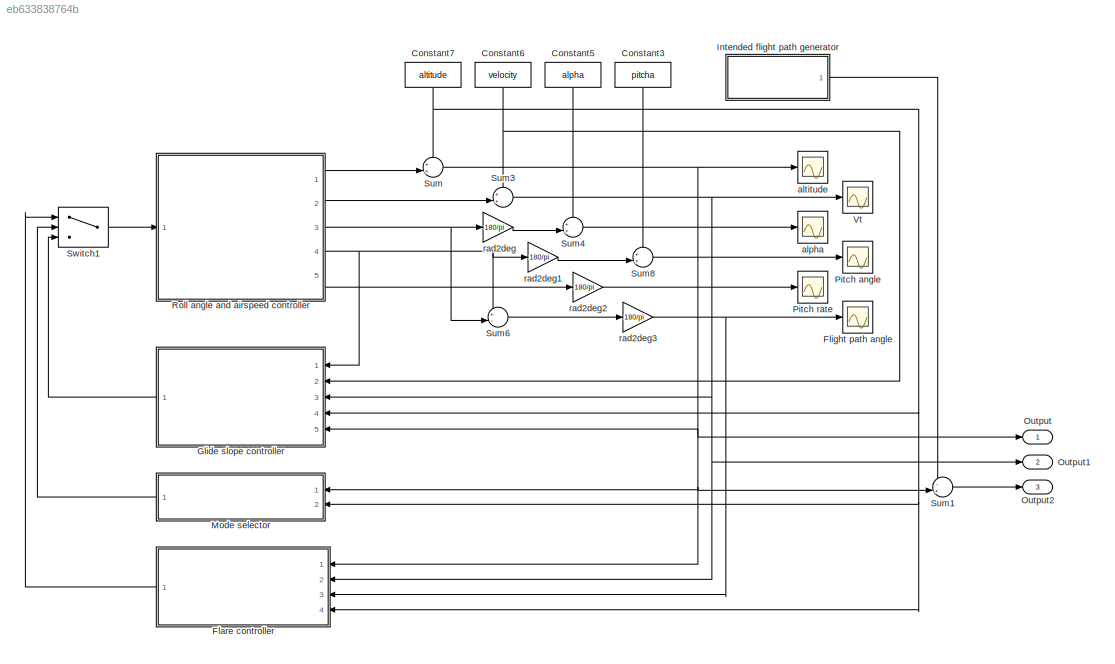
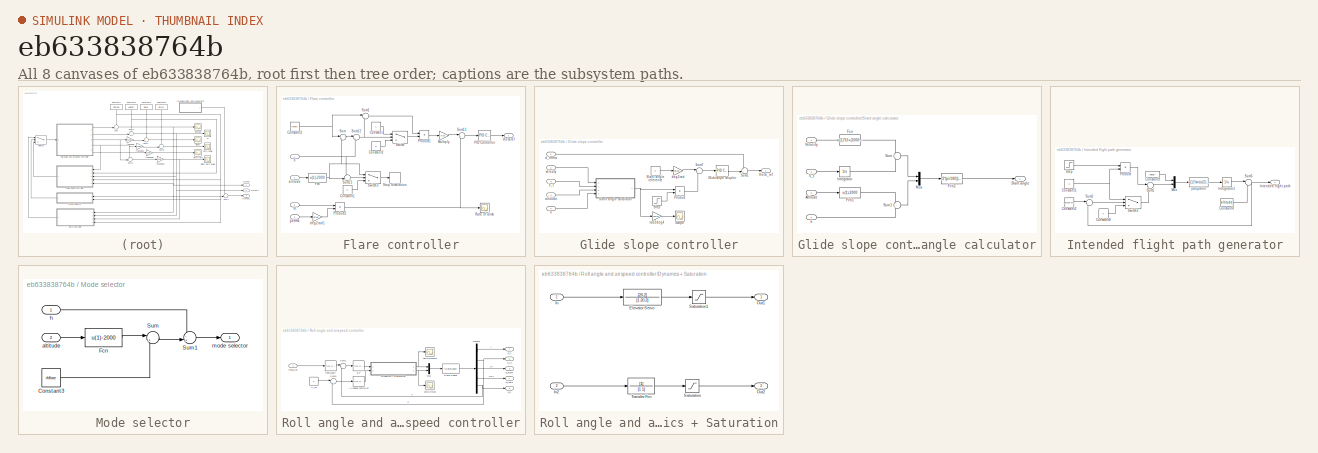
[diagram: thumbnail index - all 8 canvases of the model, root first then tree order]
MODEL slx_eb633838764b
KIND model
CONFIG AbsTol = auto
CONFIG EnableMultiTasking = off
CONFIG FixedStep = auto
CONFIG MaxStep = auto
CONFIG MinStep = auto
CONFIG RelTol = 1e-3
CONFIG SampleTimeConstraint = Unconstrained
CONFIG Solver = VariableStepAuto
CONFIG SolverName = VariableStepAuto
CONFIG StartTime = 0.0
CONFIG StopTime = 160
BLOCK [Constant] Constant3
  Value = pitcha
BLOCK [Constant] Constant5
  Value = alpha
BLOCK [Constant] Constant6
  Value = velocity
BLOCK [Constant] Constant7
  Value = altitude
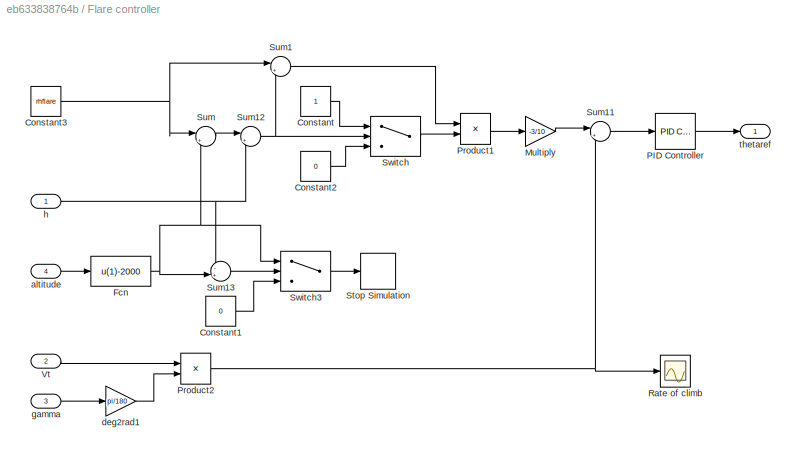
BLOCK [SubSystem] Flare controller
  Ports = [4, 1]
  RequestExecContextInheritance = off
BLOCK [Constant] Flare controller/Constant
BLOCK [Constant] Flare controller/Constant1
  Value = 0
BLOCK [Constant] Flare controller/Constant2
  Value = 0
BLOCK [Constant] Flare controller/Constant3
  Value = rhflare
BLOCK [Fcn] Flare controller/Fcn
  Expr = u(1)-2000
BLOCK [Gain] Flare controller/Multiply
  Gain = -3/10
  OutDataTypeStr = Inherit: Inherit via internal rule
  ParamDataTypeStr = Inherit: Inherit via internal rule
  SaturateOnIntegerOverflow = off
BLOCK [Reference] Flare controller/PID Controller  REF=simulink/Continuous/PID Controller
  Ports = [1, 1]
  SourceBlock = simulink/Continuous/PID Controller
  SourceProductBaseCode = SL
  SourceProductName = Simulink
  SourceType = PID 1dof
BLOCK [Product] Flare controller/Product1
  InputSameDT = off
  OutDataTypeStr = Inherit: Inherit via internal rule
  Ports = [2, 1]
  RndMeth = Floor
  SaturateOnIntegerOverflow = off
BLOCK [Product] Flare controller/Product2
  InputSameDT = off
  OutDataTypeStr = Inherit: Inherit via internal rule
  Ports = [2, 1]
  RndMeth = Floor
  SaturateOnIntegerOverflow = off
BLOCK [Scope] Flare controller/Rate of climb
  Floating = off
  NumInputPorts = 1
  Ports = [1]
  ScopeSpecificationString = Simulink.scopes.TimeScopeBlockCfg('CurrentConfiguration', extmgr.ConfigurationSet(extmgr.Configuration('Core','General UI',true),extmgr.Configuration('Core','Source UI',true),extmgr.Configuration('Sources','WiredSimulink',true,'DataLoggingVariableName','ScopeData1'),extmgr.Configuration('Visuals','Time Domain',true,'SerializedDisplays',{struct('MinYLimReal','-24.84513','MaxYLimReal','2.96034','YLa...<+1522ch>
BLOCK [Stop] Flare controller/Stop Simulation
BLOCK [Sum] Flare controller/Sum
  IconShape = round
  InputSameDT = off
  Inputs = |++
  OutDataTypeStr = Inherit: Inherit via internal rule
  Ports = [2, 1]
  SaturateOnIntegerOverflow = off
BLOCK [Sum] Flare controller/Sum1
  IconShape = round
  InputSameDT = off
  Inputs = |+-
  OutDataTypeStr = Inherit: Inherit via internal rule
  Ports = [2, 1]
  SaturateOnIntegerOverflow = off
BLOCK [Sum] Flare controller/Sum11
  IconShape = round
  InputSameDT = off
  Inputs = |+-
  OutDataTypeStr = Inherit: Inherit via internal rule
  Ports = [2, 1]
  SaturateOnIntegerOverflow = off
BLOCK [Sum] Flare controller/Sum12
  IconShape = round
  InputSameDT = off
  Inputs = |+-
  OutDataTypeStr = Inherit: Inherit via internal rule
  Ports = [2, 1]
  SaturateOnIntegerOverflow = off
BLOCK [Sum] Flare controller/Sum13
  IconShape = round
  InputSameDT = off
  Inputs = -+|
  OutDataTypeStr = Inherit: Inherit via internal rule
  Ports = [2, 1]
  SaturateOnIntegerOverflow = off
BLOCK [Switch] Flare controller/Switch
  Criteria = u2 > Threshold
  InputSameDT = off
  SaturateOnIntegerOverflow = off
BLOCK [Switch] Flare controller/Switch3
  InputSameDT = off
  SaturateOnIntegerOverflow = off
BLOCK [Inport] Flare controller/Vt
  IconDisplay = Port number
  Port = 2
BLOCK [Inport] Flare controller/altitude
  IconDisplay = Port number
  Port = 4
BLOCK [Gain] Flare controller/deg2rad1
  Gain = pi/180
  OutDataTypeStr = Inherit: Inherit via internal rule
  ParamDataTypeStr = Inherit: Inherit via internal rule
  SaturateOnIntegerOverflow = off
BLOCK [Inport] Flare controller/gamma
  IconDisplay = Port number
  Port = 3
BLOCK [Inport] Flare controller/h
  IconDisplay = Port number
BLOCK [Outport] Flare controller/thetaref
  IconDisplay = Port number
BLOCK [Scope] Flight path angle
  Floating = off
  NumInputPorts = 1
  Ports = [1]
  ScopeSpecificationString = Simulink.scopes.TimeScopeBlockCfg('CurrentConfiguration', extmgr.ConfigurationSet(extmgr.Configuration('Core','General UI',true),extmgr.Configuration('Core','Source UI',true),extmgr.Configuration('Sources','WiredSimulink',true,'DataLoggingVariableName','ScopeData1'),extmgr.Configuration('Visuals','Time Domain',true,'SerializedDisplays',{struct('MinYLimReal','-4.72802','MaxYLimReal','0.56349','YLab...<+1512ch>
BLOCK [SubSystem] Glide slope controller
  Ports = [5, 1]
  RequestExecContextInheritance = off
BLOCK [Reference] Glide slope controller/Glideslope coupler  REF=simulink/Continuous/PID Controller
  Ports = [1, 1]
  SourceBlock = simulink/Continuous/PID Controller
  SourceProductBaseCode = SL
  SourceProductName = Simulink
  SourceType = PID 1dof
BLOCK [Product] Glide slope controller/Product
  InputSameDT = off
  OutDataTypeStr = Inherit: Inherit via internal rule
  Ports = [2, 1]
  RndMeth = Floor
  SaturateOnIntegerOverflow = off
BLOCK [Scope] Glide slope controller/Scope
  Floating = off
  NumInputPorts = 1
  Ports = [1]
  ScopeSpecificationString = Simulink.scopes.TimeScopeBlockCfg('CurrentConfiguration', extmgr.ConfigurationSet(extmgr.Configuration('Core','General UI',true),extmgr.Configuration('Core','Source UI',true),extmgr.Configuration('Sources','WiredSimulink',true,'DataLoggingVariableName','ScopeData4'),extmgr.Configuration('Visuals','Time Domain',true,'SerializedDisplays',{struct('MinYLimReal','-4.91603','MaxYLimReal','4.02846','YLab...<+1441ch>
BLOCK [SubSystem] Glide slope controller/Slant angle calculator
  Ports = [4, 1]
  RequestExecContextInheritance = off
BLOCK [Inport] Glide slope controller/Slant angle calculator/Altitude
  IconDisplay = Port number
  Port = 3
BLOCK [Fcn] Glide slope controller/Slant angle calculator/Fcn
  Expr = u(1)*10+(2000/tan(3*(pi/180)))
BLOCK [Fcn] Glide slope controller/Slant angle calculator/Fcn1
  Expr = u(1)-2000
BLOCK [Fcn] Glide slope controller/Slant angle calculator/Fcn2
  Expr = (3*(pi/180))-(atan(u(2)/u(1)))
BLOCK [Integrator] Glide slope controller/Slant angle calculator/Integrator
  Ports = [1, 1]
BLOCK [Mux] Glide slope controller/Slant angle calculator/Mux
  DisplayOption = bar
  Inputs = 2
  Ports = [2, 1]
BLOCK [Outport] Glide slope controller/Slant angle calculator/Slant angle
  IconDisplay = Port number
BLOCK [Sum] Glide slope controller/Slant angle calculator/Sum
  IconShape = round
  InputSameDT = off
  Inputs = +|-
  OutDataTypeStr = Inherit: Inherit via internal rule
  Ports = [2, 1]
  SaturateOnIntegerOverflow = off
BLOCK [Sum] Glide slope controller/Slant angle calculator/Sum1
  IconShape = round
  InputSameDT = off
  Inputs = -|+
  OutDataTypeStr = Inherit: Inherit via internal rule
  Ports = [2, 1]
  SaturateOnIntegerOverflow = off
BLOCK [Inport] Glide slope controller/Slant angle calculator/V_t
  IconDisplay = Port number
  Port = 2
BLOCK [Inport] Glide slope controller/Slant angle calculator/Velocity
  IconDisplay = Port number
BLOCK [Inport] Glide slope controller/Slant angle calculator/h
  IconDisplay = Port number
  Port = 4
BLOCK [Constant] Glide slope controller/Slant angle reference
  Value = 0
BLOCK [Step] Glide slope controller/Step
  SampleTime = 0
  Time = 9.6
BLOCK [Sum] Glide slope controller/Sum1
  IconShape = round
  InputSameDT = off
  Inputs = -+|
  OutDataTypeStr = Inherit: Inherit via internal rule
  Ports = [2, 1]
  SaturateOnIntegerOverflow = off
BLOCK [Sum] Glide slope controller/Sum7
  IconShape = round
  InputSameDT = off
  Inputs = |+-
  OutDataTypeStr = Inherit: Inherit via internal rule
  Ports = [2, 1]
  SaturateOnIntegerOverflow = off
BLOCK [Inport] Glide slope controller/V_t
  IconDisplay = Port number
  Port = 3
BLOCK [Inport] Glide slope controller/altitude
  IconDisplay = Port number
  Port = 4
BLOCK [Inport] Glide slope controller/d_theta
  IconDisplay = Port number
BLOCK [Gain] Glide slope controller/deg2rad
  Gain = pi/180
  OutDataTypeStr = Inherit: Inherit via internal rule
  ParamDataTypeStr = Inherit: Inherit via internal rule
  SaturateOnIntegerOverflow = off
BLOCK [Inport] Glide slope controller/h
  IconDisplay = Port number
  Port = 5
BLOCK [Gain] Glide slope controller/rad2deg4
  Gain = 180/pi
  OutDataTypeStr = Inherit: Inherit via internal rule
  ParamDataTypeStr = Inherit: Inherit via internal rule
  SaturateOnIntegerOverflow = off
BLOCK [Outport] Glide slope controller/theta_ref
  IconDisplay = Port number
BLOCK [Inport] Glide slope controller/velocity
  IconDisplay = Port number
  Port = 2
BLOCK [SubSystem] Intended flight path generator
  Ports = [0, 1]
  RequestExecContextInheritance = off
BLOCK [Constant] Intended flight path generator/Constant1
  Value = 3
BLOCK [Constant] Intended flight path generator/Constant2
  Value = altitude-2000
BLOCK [Constant] Intended flight path generator/Constant4
  Value = altitude
BLOCK [Constant] Intended flight path generator/Constant8
  Value = 0
BLOCK [Constant] Intended flight path generator/Constant9
  Value = velocity
BLOCK [Integrator] Intended flight path generator/Integrator1
  Ports = [1, 1]
BLOCK [Outport] Intended flight path generator/Intended flight path
  IconDisplay = Port number
BLOCK [Mux] Intended flight path generator/Mux
  DisplayOption = bar
  Inputs = 2
  Ports = [2, 1]
BLOCK [Product] Intended flight path generator/Product
  InputSameDT = off
  OutDataTypeStr = Inherit: Inherit via internal rule
  Ports = [2, 1]
  RndMeth = Floor
  SaturateOnIntegerOverflow = off
BLOCK [Step] Intended flight path generator/Step
  SampleTime = 0
  Time = 10
BLOCK [Sum] Intended flight path generator/Sum1
  IconShape = round
  InputSameDT = off
  Inputs = |+-
  OutDataTypeStr = Inherit: Inherit via internal rule
  Ports = [2, 1]
  SaturateOnIntegerOverflow = off
BLOCK [Sum] Intended flight path generator/Sum2
  IconShape = round
  InputSameDT = off
  Inputs = |+-
  OutDataTypeStr = Inherit: Inherit via internal rule
  Ports = [2, 1]
  SaturateOnIntegerOverflow = off
BLOCK [Sum] Intended flight path generator/Sum5
  IconShape = round
  InputSameDT = off
  Inputs = |-+
  OutDataTypeStr = Inherit: Inherit via internal rule
  Ports = [2, 1]
  SaturateOnIntegerOverflow = off
BLOCK [Switch] Intended flight path generator/Switch2
  InputSameDT = off
  SaturateOnIntegerOverflow = off
BLOCK [Fcn] Intended flight path generator/y bepalen
  Expr = u(1)*sin(u(2)*pi/180)
BLOCK [SubSystem] Mode selector
  Ports = [2, 1]
  RequestExecContextInheritance = off
BLOCK [Constant] Mode selector/Constant3
  Value = rhflare
BLOCK [Fcn] Mode selector/Fcn
  Expr = u(1)-2000
BLOCK [Sum] Mode selector/Sum
  IconShape = round
  InputSameDT = off
  Inputs = |++
  OutDataTypeStr = Inherit: Inherit via internal rule
  Ports = [2, 1]
  SaturateOnIntegerOverflow = off
BLOCK [Sum] Mode selector/Sum1
  IconShape = round
  InputSameDT = off
  Inputs = -+|
  OutDataTypeStr = Inherit: Inherit via internal rule
  Ports = [2, 1]
  SaturateOnIntegerOverflow = off
BLOCK [Inport] Mode selector/altitude
  IconDisplay = Port number
  Port = 2
BLOCK [Inport] Mode selector/h
  IconDisplay = Port number
BLOCK [Outport] Mode selector/mode selector
  IconDisplay = Port number
BLOCK [Outport] Output
  IconDisplay = Port number
BLOCK [Outport] Output1
  IconDisplay = Port number
  Port = 2
BLOCK [Outport] Output2
  IconDisplay = Port number
  Port = 3
BLOCK [Scope] Pitch angle
  Floating = off
  NumInputPorts = 1
  Ports = [1]
  ScopeSpecificationString = Simulink.scopes.TimeScopeBlockCfg('CurrentConfiguration', extmgr.ConfigurationSet(extmgr.Configuration('Core','General UI',true),extmgr.Configuration('Core','Source UI',true),extmgr.Configuration('Sources','WiredSimulink',true,'DataLoggingVariableName','ScopeData3'),extmgr.Configuration('Visuals','Time Domain',true,'SerializedDisplays',{struct('MinYLimReal','5.22121','MaxYLimReal','11.77507','YLab...<+1527ch>
BLOCK [Scope] Pitch rate
  Floating = off
  NumInputPorts = 1
  Ports = [1]
  ScopeSpecificationString = Simulink.scopes.TimeScopeBlockCfg('CurrentConfiguration', extmgr.ConfigurationSet(extmgr.Configuration('Core','General UI',true),extmgr.Configuration('Core','Source UI',true),extmgr.Configuration('Sources','WiredSimulink',true,'DataLoggingVariableName','ScopeData2'),extmgr.Configuration('Visuals','Time Domain',true,'SerializedDisplays',{struct('MinYLimReal','-1.71583','MaxYLimReal','1.6471','YLabe...<+1500ch>
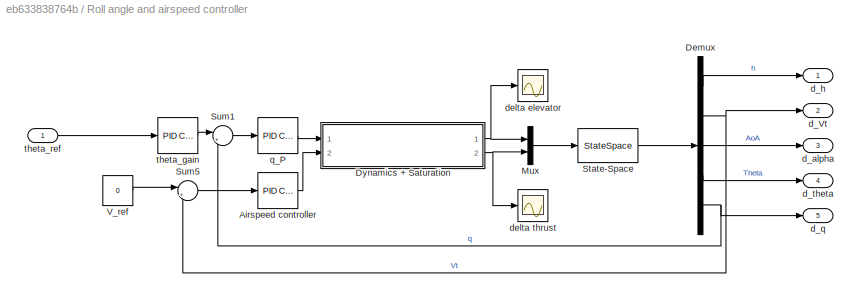
BLOCK [SubSystem] Roll angle and airspeed controller
  Ports = [1, 5]
  RequestExecContextInheritance = off
BLOCK [Constant] Roll angle and airspeed controller/ V_ref
  Value = 0
BLOCK [Reference] Roll angle and airspeed controller/Airspeed controller  REF=simulink/Continuous/PID Controller
  Ports = [1, 1]
  SourceBlock = simulink/Continuous/PID Controller
  SourceProductBaseCode = SL
  SourceProductName = Simulink
  SourceType = PID 1dof
BLOCK [Demux] Roll angle and airspeed controller/Demux
  DisplayOption = bar
  Outputs = 5
  Ports = [1, 5]
BLOCK [SubSystem] Roll angle and airspeed controller/Dynamics + Saturation
  Ports = [2, 2]
  RequestExecContextInheritance = off
BLOCK [TransferFcn] Roll angle and airspeed controller/Dynamics + Saturation/Elevator Servo
  Denominator = [1 20.2]
  Numerator = [20.2]
BLOCK [Inport] Roll angle and airspeed controller/Dynamics + Saturation/In 
  IconDisplay = Port number
BLOCK [Inport] Roll angle and airspeed controller/Dynamics + Saturation/In2
  IconDisplay = Port number
  Port = 2
BLOCK [Outport] Roll angle and airspeed controller/Dynamics + Saturation/Out1
  IconDisplay = Port number
BLOCK [Outport] Roll angle and airspeed controller/Dynamics + Saturation/Out2
  IconDisplay = Port number
  Port = 2
BLOCK [Saturate] Roll angle and airspeed controller/Dynamics + Saturation/Saturation
  InputPortMap = u0
  LowerLimit = -1.5106e+03
  Ports = [1, 1]
  UpperLimit = 1.6489e+04
BLOCK [Saturate] Roll angle and airspeed controller/Dynamics + Saturation/Saturation1
  InputPortMap = u0
  LowerLimit = -28.7783
  Ports = [1, 1]
  UpperLimit = 21.2217
BLOCK [TransferFcn] Roll angle and airspeed controller/Dynamics + Saturation/Transfer Fcn
  Denominator = [1 1]
BLOCK [Mux] Roll angle and airspeed controller/Mux
  DisplayOption = bar
  Inputs = 2
  Ports = [2, 1]
BLOCK [StateSpace] Roll angle and airspeed controller/State-Space
  A = As
  B = Bs
  C = Cs
  D = Ds
  InitialCondition = 0
  Ports = [1, 1]
BLOCK [Sum] Roll angle and airspeed controller/Sum1
  IconShape = round
  InputSameDT = off
  Inputs = |+-
  OutDataTypeStr = Inherit: Inherit via internal rule
  Ports = [2, 1]
  SaturateOnIntegerOverflow = off
BLOCK [Sum] Roll angle and airspeed controller/Sum5
  IconShape = round
  InputSameDT = off
  Inputs = |+-
  OutDataTypeStr = Inherit: Inherit via internal rule
  Ports = [2, 1]
  SaturateOnIntegerOverflow = off
BLOCK [Outport] Roll angle and airspeed controller/d_Vt
  IconDisplay = Port number
  Port = 2
BLOCK [Outport] Roll angle and airspeed controller/d_alpha
  IconDisplay = Port number
  Port = 3
BLOCK [Outport] Roll angle and airspeed controller/d_h
  IconDisplay = Port number
BLOCK [Outport] Roll angle and airspeed controller/d_q
  IconDisplay = Port number
  Port = 5
BLOCK [Outport] Roll angle and airspeed controller/d_theta
  IconDisplay = Port number
  Port = 4
BLOCK [Scope] Roll angle and airspeed controller/delta elevator
  Floating = off
  NumInputPorts = 1
  Ports = [1]
  ScopeSpecificationString = Simulink.scopes.TimeScopeBlockCfg('CurrentConfiguration', extmgr.ConfigurationSet(extmgr.Configuration('Core','General UI',true),extmgr.Configuration('Core','Source UI',true),extmgr.Configuration('Sources','WiredSimulink',true,'DataLoggingVariableName','ScopeData2'),extmgr.Configuration('Visuals','Time Domain',true,'SerializedDisplays',{struct('MinYLimReal','-33.72757','MaxYLimReal','15.7651','YLa...<+1535ch>
BLOCK [Scope] Roll angle and airspeed controller/delta thrust
  Floating = off
  NumInputPorts = 1
  Ports = [1]
  ScopeSpecificationString = Simulink.scopes.TimeScopeBlockCfg('CurrentConfiguration', extmgr.ConfigurationSet(extmgr.Configuration('Core','General UI',true),extmgr.Configuration('Core','Source UI',true),extmgr.Configuration('Sources','WiredSimulink',true,'DataLoggingVariableName','ScopeData3'),extmgr.Configuration('Visuals','Time Domain',true,'SerializedDisplays',{struct('MinYLimReal','-1732.78097','MaxYLimReal','489.02875',...<+1488ch>
BLOCK [Reference] Roll angle and airspeed controller/q_P  REF=simulink/Continuous/PID Controller
  Ports = [1, 1]
  SourceBlock = simulink/Continuous/PID Controller
  SourceProductBaseCode = SL
  SourceProductName = Simulink
  SourceType = PID 1dof
BLOCK [Reference] Roll angle and airspeed controller/theta_gain  REF=simulink/Continuous/PID Controller
  Ports = [1, 1]
  SourceBlock = simulink/Continuous/PID Controller
  SourceProductBaseCode = SL
  SourceProductName = Simulink
  SourceType = PID 1dof
BLOCK [Inport] Roll angle and airspeed controller/theta_ref
  IconDisplay = Port number
BLOCK [Sum] Sum
  IconShape = round
  InputSameDT = off
  Inputs = ++|
  OutDataTypeStr = Inherit: Inherit via internal rule
  Ports = [2, 1]
  SaturateOnIntegerOverflow = off
BLOCK [Sum] Sum1
  IconShape = round
  InputSameDT = off
  Inputs = -+|
  OutDataTypeStr = Inherit: Inherit via internal rule
  Ports = [2, 1]
  SaturateOnIntegerOverflow = off
BLOCK [Sum] Sum3
  IconShape = round
  InputSameDT = off
  Inputs = ++|
  OutDataTypeStr = Inherit: Inherit via internal rule
  Ports = [2, 1]
  SaturateOnIntegerOverflow = off
BLOCK [Sum] Sum4
  IconShape = round
  InputSameDT = off
  Inputs = ++|
  OutDataTypeStr = Inherit: Inherit via internal rule
  Ports = [2, 1]
  SaturateOnIntegerOverflow = off
BLOCK [Sum] Sum6
  IconShape = round
  InputSameDT = off
  Inputs = +-|
  OutDataTypeStr = Inherit: Inherit via internal rule
  Ports = [2, 1]
  SaturateOnIntegerOverflow = off
BLOCK [Sum] Sum8
  IconShape = round
  InputSameDT = off
  Inputs = ++|
  OutDataTypeStr = Inherit: Inherit via internal rule
  Ports = [2, 1]
  SaturateOnIntegerOverflow = off
BLOCK [Switch] Switch1
  Criteria = u2 > Threshold
  InputSameDT = off
  SaturateOnIntegerOverflow = off
BLOCK [Scope] Vt
  Floating = off
  NumInputPorts = 1
  Ports = [1]
  ScopeSpecificationString = Simulink.scopes.TimeScopeBlockCfg('CurrentConfiguration', extmgr.ConfigurationSet(extmgr.Configuration('Core','General UI',true),extmgr.Configuration('Core','Source UI',true),extmgr.Configuration('Sources','WiredSimulink',true,'DataLoggingVariableName','ScopeData3'),extmgr.Configuration('Visuals','Time Domain',true,'SerializedDisplays',{struct('MinYLimReal','299.09608','MaxYLimReal','301.30756','Y...<+1425ch>
BLOCK [Scope] alpha
  Floating = off
  NumInputPorts = 1
  Ports = [1]
  ScopeSpecificationString = Simulink.scopes.TimeScopeBlockCfg('CurrentConfiguration', extmgr.ConfigurationSet(extmgr.Configuration('Core','General UI',true),extmgr.Configuration('Core','Source UI',true),extmgr.Configuration('Sources','WiredSimulink',true,'DataLoggingVariableName','ScopeData3'),extmgr.Configuration('Visuals','Time Domain',true,'SerializedDisplays',{struct('MinYLimReal','6.566','MaxYLimReal','9.97836','YLabelR...<+1436ch>
BLOCK [Scope] altitude
  Floating = off
  NumInputPorts = 1
  Ports = [1]
  ScopeSpecificationString = Simulink.scopes.TimeScopeBlockCfg('CurrentConfiguration', extmgr.ConfigurationSet(extmgr.Configuration('Core','General UI',true),extmgr.Configuration('Core','Source UI',true),extmgr.Configuration('Sources','WiredSimulink',true,'DataLoggingVariableName','ScopeData1'),extmgr.Configuration('Visuals','Time Domain',true,'SerializedDisplays',{struct('MinYLimReal','2750.00181','MaxYLimReal','5250.08192',...<+1432ch>
BLOCK [Gain] rad2deg
  Gain = 180/pi
  OutDataTypeStr = Inherit: Inherit via internal rule
  ParamDataTypeStr = Inherit: Inherit via internal rule
  SaturateOnIntegerOverflow = off
BLOCK [Gain] rad2deg1
  Gain = 180/pi
  OutDataTypeStr = Inherit: Inherit via internal rule
  ParamDataTypeStr = Inherit: Inherit via internal rule
  SaturateOnIntegerOverflow = off
BLOCK [Gain] rad2deg2
  Gain = 180/pi
  OutDataTypeStr = Inherit: Inherit via internal rule
  ParamDataTypeStr = Inherit: Inherit via internal rule
  SaturateOnIntegerOverflow = off
BLOCK [Gain] rad2deg3
  Gain = 180/pi
  OutDataTypeStr = Inherit: Inherit via internal rule
  ParamDataTypeStr = Inherit: Inherit via internal rule
  SaturateOnIntegerOverflow = off
LINE Constant3:1 -> Sum8:1
LINE Constant5:1 -> Sum4:1
NET Constant6:1 -> Glide slope controller:2, Sum3:1
NET Constant7:1 -> Flare controller:4, Glide slope controller:4, Mode selector:2, Sum:1
LINE Flare controller/Constant1:1 -> Flare controller/Switch3:3
LINE Flare controller/Constant2:1 -> Flare controller/Switch:3
NET Flare controller/Constant3:1 -> Flare controller/Sum1:1, Flare controller/Sum:1
LINE Flare controller/Constant:1 -> Flare controller/Switch:1
NET Flare controller/Fcn:1 -> Flare controller/Sum13:2, Flare controller/Sum:2, Flare controller/Switch3:1
LINE Flare controller/Multiply:1 -> Flare controller/Sum11:1
LINE Flare controller/PID Controller:1 -> Flare controller/thetaref:1
LINE Flare controller/Product1:1 -> Flare controller/Multiply:1
NET Flare controller/Product2:1 -> Flare controller/Rate of climb:1, Flare controller/Sum11:2
LINE Flare controller/Sum11:1 -> Flare controller/PID Controller:1
NET Flare controller/Sum12:1 -> Flare controller/Sum1:2, Flare controller/Switch:2
LINE Flare controller/Sum13:1 -> Flare controller/Switch3:2
LINE Flare controller/Sum1:1 -> Flare controller/Product1:1
LINE Flare controller/Sum:1 -> Flare controller/Sum12:1
LINE Flare controller/Switch3:1 -> Flare controller/Stop Simulation:1
LINE Flare controller/Switch:1 -> Flare controller/Product1:2
LINE Flare controller/Vt:1 -> Flare controller/Product2:1
LINE Flare controller/altitude:1 -> Flare controller/Fcn:1
LINE Flare controller/deg2rad1:1 -> Flare controller/Product2:2
LINE Flare controller/gamma:1 -> Flare controller/deg2rad1:1
NET Flare controller/h:1 -> Flare controller/Sum12:2, Flare controller/Sum13:1
LINE Flare controller:1 -> Switch1:1
LINE Glide slope controller/Glideslope coupler:1 -> Glide slope controller/Sum1:2
LINE Glide slope controller/Product:1 -> Glide slope controller/Sum7:2
LINE Glide slope controller/Slant angle calculator/Altitude:1 -> Glide slope controller/Slant angle calculator/Fcn1:1
LINE Glide slope controller/Slant angle calculator/Fcn1:1 -> Glide slope controller/Slant angle calculator/Sum1:1
LINE Glide slope controller/Slant angle calculator/Fcn2:1 -> Glide slope controller/Slant angle calculator/Slant angle:1
LINE Glide slope controller/Slant angle calculator/Fcn:1 -> Glide slope controller/Slant angle calculator/Sum:1
LINE Glide slope controller/Slant angle calculator/Integrator:1 -> Glide slope controller/Slant angle calculator/Sum:2
LINE Glide slope controller/Slant angle calculator/Mux:1 -> Glide slope controller/Slant angle calculator/Fcn2:1
LINE Glide slope controller/Slant angle calculator/Sum1:1 -> Glide slope controller/Slant angle calculator/Mux:2
LINE Glide slope controller/Slant angle calculator/Sum:1 -> Glide slope controller/Slant angle calculator/Mux:1
LINE Glide slope controller/Slant angle calculator/V_t:1 -> Glide slope controller/Slant angle calculator/Integrator:1
LINE Glide slope controller/Slant angle calculator/Velocity:1 -> Glide slope controller/Slant angle calculator/Fcn:1
LINE Glide slope controller/Slant angle calculator/h:1 -> Glide slope controller/Slant angle calculator/Sum1:2
NET Glide slope controller/Slant angle calculator:1 -> Glide slope controller/Product:1, Glide slope controller/rad2deg4:1
LINE Glide slope controller/Slant angle reference:1 -> Glide slope controller/deg2rad:1
LINE Glide slope controller/Step:1 -> Glide slope controller/Product:2
LINE Glide slope controller/Sum1:1 -> Glide slope controller/theta_ref:1
LINE Glide slope controller/Sum7:1 -> Glide slope controller/Glideslope coupler:1
LINE Glide slope controller/V_t:1 -> Glide slope controller/Slant angle calculator:2
LINE Glide slope controller/altitude:1 -> Glide slope controller/Slant angle calculator:3
LINE Glide slope controller/d_theta:1 -> Glide slope controller/Sum1:1
LINE Glide slope controller/deg2rad:1 -> Glide slope controller/Sum7:1
LINE Glide slope controller/h:1 -> Glide slope controller/Slant angle calculator:4
LINE Glide slope controller/rad2deg4:1 -> Glide slope controller/Scope:1
LINE Glide slope controller/velocity:1 -> Glide slope controller/Slant angle calculator:1
LINE Glide slope controller:1 -> Switch1:3
NET Intended flight path generator/Constant1:1 -> Intended flight path generator/Product:2, Intended flight path generator/Switch2:1
LINE Intended flight path generator/Constant2:1 -> Intended flight path generator/Sum2:1
LINE Intended flight path generator/Constant4:1 -> Intended flight path generator/Sum5:2
LINE Intended flight path generator/Constant8:1 -> Intended flight path generator/Switch2:3
LINE Intended flight path generator/Constant9:1 -> Intended flight path generator/Mux:1
LINE Intended flight path generator/Integrator1:1 -> Intended flight path generator/Sum5:1
LINE Intended flight path generator/Mux:1 -> Intended flight path generator/y bepalen:1
LINE Intended flight path generator/Product:1 -> Intended flight path generator/Sum1:1
LINE Intended flight path generator/Step:1 -> Intended flight path generator/Product:1
LINE Intended flight path generator/Sum1:1 -> Intended flight path generator/Mux:2
LINE Intended flight path generator/Sum2:1 -> Intended flight path generator/Switch2:2
NET Intended flight path generator/Sum5:1 -> Intended flight path generator/Intended flight path:1, Intended flight path generator/Sum2:2
LINE Intended flight path generator/Switch2:1 -> Intended flight path generator/Sum1:2
LINE Intended flight path generator/y bepalen:1 -> Intended flight path generator/Integrator1:1
LINE Intended flight path generator:1 -> Sum1:1
LINE Mode selector/Constant3:1 -> Mode selector/Sum:2
LINE Mode selector/Fcn:1 -> Mode selector/Sum:1
LINE Mode selector/Sum1:1 -> Mode selector/mode selector:1
LINE Mode selector/Sum:1 -> Mode selector/Sum1:2
LINE Mode selector/altitude:1 -> Mode selector/Fcn:1
LINE Mode selector/h:1 -> Mode selector/Sum1:1
LINE Mode selector:1 -> Switch1:2
LINE Roll angle and airspeed controller/ V_ref:1 -> Roll angle and airspeed controller/Sum5:1
LINE Roll angle and airspeed controller/Airspeed controller:1 -> Roll angle and airspeed controller/Dynamics + Saturation:2
LINE Roll angle and airspeed controller/Demux:1 -> Roll angle and airspeed controller/d_h:1
NET Roll angle and airspeed controller/Demux:2 -> Roll angle and airspeed controller/Sum5:2, Roll angle and airspeed controller/d_Vt:1
LINE Roll angle and airspeed controller/Demux:3 -> Roll angle and airspeed controller/d_alpha:1
LINE Roll angle and airspeed controller/Demux:4 -> Roll angle and airspeed controller/d_theta:1
NET Roll angle and airspeed controller/Demux:5 -> Roll angle and airspeed controller/Sum1:2, Roll angle and airspeed controller/d_q:1
LINE Roll angle and airspeed controller/Dynamics + Saturation/Elevator Servo:1 -> Roll angle and airspeed controller/Dynamics + Saturation/Saturation1:1
LINE Roll angle and airspeed controller/Dynamics + Saturation/In :1 -> Roll angle and airspeed controller/Dynamics + Saturation/Elevator Servo:1
LINE Roll angle and airspeed controller/Dynamics + Saturation/In2:1 -> Roll angle and airspeed controller/Dynamics + Saturation/Transfer Fcn:1
LINE Roll angle and airspeed controller/Dynamics + Saturation/Saturation1:1 -> Roll angle and airspeed controller/Dynamics + Saturation/Out1:1
LINE Roll angle and airspeed controller/Dynamics + Saturation/Saturation:1 -> Roll angle and airspeed controller/Dynamics + Saturation/Out2:1
LINE Roll angle and airspeed controller/Dynamics + Saturation/Transfer Fcn:1 -> Roll angle and airspeed controller/Dynamics + Saturation/Saturation:1
NET Roll angle and airspeed controller/Dynamics + Saturation:1 -> Roll angle and airspeed controller/Mux:1, Roll angle and airspeed controller/delta elevator:1
NET Roll angle and airspeed controller/Dynamics + Saturation:2 -> Roll angle and airspeed controller/Mux:2, Roll angle and airspeed controller/delta thrust:1
LINE Roll angle and airspeed controller/Mux:1 -> Roll angle and airspeed controller/State-Space:1
LINE Roll angle and airspeed controller/State-Space:1 -> Roll angle and airspeed controller/Demux:1
LINE Roll angle and airspeed controller/Sum1:1 -> Roll angle and airspeed controller/q_P:1
LINE Roll angle and airspeed controller/Sum5:1 -> Roll angle and airspeed controller/Airspeed controller:1
LINE Roll angle and airspeed controller/q_P:1 -> Roll angle and airspeed controller/Dynamics + Saturation:1
LINE Roll angle and airspeed controller/theta_gain:1 -> Roll angle and airspeed controller/Sum1:1
LINE Roll angle and airspeed controller/theta_ref:1 -> Roll angle and airspeed controller/theta_gain:1
LINE Roll angle and airspeed controller:1 -> Sum:2
LINE Roll angle and airspeed controller:2 -> Sum3:2
NET Roll angle and airspeed controller:3 -> Sum6:2, rad2deg:1
NET Roll angle and airspeed controller:4 -> Glide slope controller:1, Sum6:1, rad2deg1:1
LINE Roll angle and airspeed controller:5 -> rad2deg2:1
LINE Sum1:1 -> Output2:1
NET Sum3:1 -> Flare controller:2, Glide slope controller:3, Output1:1, Vt:1
LINE Sum4:1 -> alpha:1
LINE Sum6:1 -> rad2deg3:1
LINE Sum8:1 -> Pitch angle:1
NET Sum:1 -> Flare controller:1, Glide slope controller:5, Mode selector:1, Output:1, Sum1:2, altitude:1
LINE Switch1:1 -> Roll angle and airspeed controller:1
LINE rad2deg1:1 -> Sum8:2
LINE rad2deg2:1 -> Pitch rate:1
NET rad2deg3:1 -> Flare controller:3, Flight path angle:1
LINE rad2deg:1 -> Sum4:2
note: NET lines group one-source signal fan-out (src -> all destinations, sorted); 1:1 wires keep LINE
